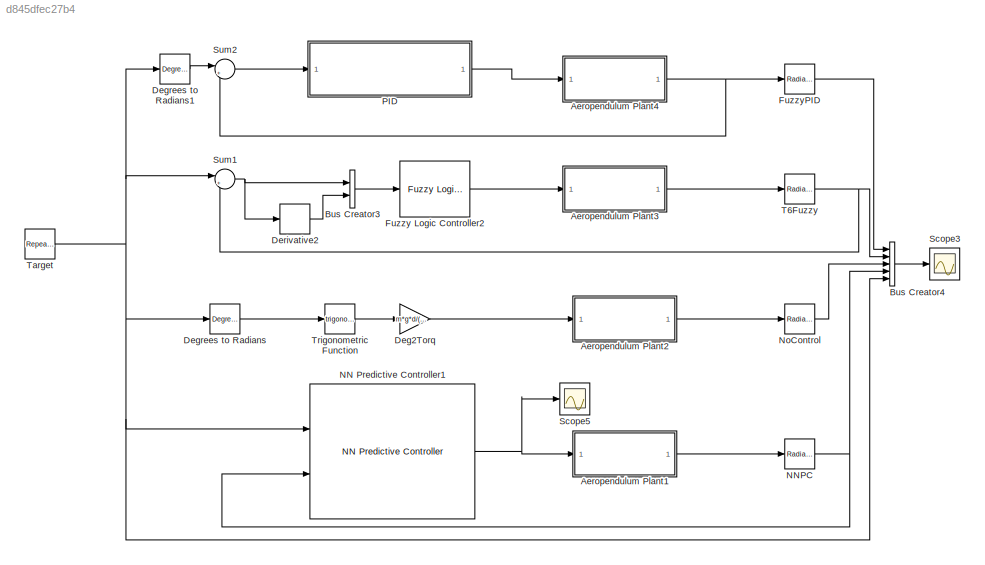
MODEL slx_d845dfec27b4
KIND model
CONFIG AbsTol = auto
CONFIG EnableMultiTasking = off
CONFIG FixedStep = auto
CONFIG MaxStep = auto
CONFIG MinStep = auto
CONFIG RelTol = 1e-3
CONFIG SampleTimeConstraint = Unconstrained
CONFIG Solver = VariableStepAuto
CONFIG SolverName = VariableStepAuto
CONFIG StartTime = 0.0
CONFIG StopTime = 30
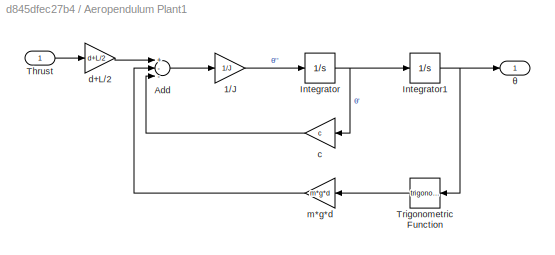
BLOCK [SubSystem] Aeropendulum Plant1
  Ports = [1, 1]
  RequestExecContextInheritance = off
  Variant = off
BLOCK [Gain] Aeropendulum Plant1/1//J
  Gain = 1/J
  OutDataTypeStr = Inherit: Inherit via internal rule
  ParamDataTypeStr = Inherit: Inherit via internal rule
  SaturateOnIntegerOverflow = off
BLOCK [Sum] Aeropendulum Plant1/Add
  InputSameDT = off
  Inputs = +--
  OutDataTypeStr = Inherit: Inherit via internal rule
  Ports = [3, 1]
  SaturateOnIntegerOverflow = off
BLOCK [Integrator] Aeropendulum Plant1/Integrator
  Ports = [1, 1]
BLOCK [Integrator] Aeropendulum Plant1/Integrator1
  Ports = [1, 1]
BLOCK [Inport] Aeropendulum Plant1/Thrust
  IconDisplay = Port number
BLOCK [Trigonometry] Aeropendulum Plant1/Trigonometric Function
  Ports = [1, 1]
BLOCK [Gain] Aeropendulum Plant1/c
  Gain = c
  OutDataTypeStr = Inherit: Inherit via internal rule
  ParamDataTypeStr = Inherit: Inherit via internal rule
  SaturateOnIntegerOverflow = off
BLOCK [Gain] Aeropendulum Plant1/d+L//2
  Gain = d+L/2
  OutDataTypeStr = Inherit: Inherit via internal rule
  ParamDataTypeStr = Inherit: Inherit via internal rule
  SaturateOnIntegerOverflow = off
BLOCK [Gain] Aeropendulum Plant1/m*g*d
  Gain = m*g*d
  OutDataTypeStr = Inherit: Inherit via internal rule
  ParamDataTypeStr = Inherit: Inherit via internal rule
  SaturateOnIntegerOverflow = off
BLOCK [Outport] Aeropendulum Plant1/θ
  IconDisplay = Port number
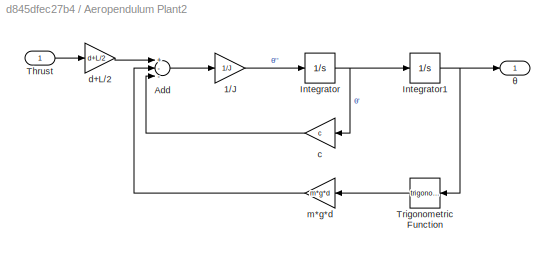
BLOCK [SubSystem] Aeropendulum Plant2
  Ports = [1, 1]
  RequestExecContextInheritance = off
  Variant = off
BLOCK [Gain] Aeropendulum Plant2/1//J
  Gain = 1/J
  OutDataTypeStr = Inherit: Inherit via internal rule
  ParamDataTypeStr = Inherit: Inherit via internal rule
  SaturateOnIntegerOverflow = off
BLOCK [Sum] Aeropendulum Plant2/Add
  InputSameDT = off
  Inputs = +--
  OutDataTypeStr = Inherit: Inherit via internal rule
  Ports = [3, 1]
  SaturateOnIntegerOverflow = off
BLOCK [Integrator] Aeropendulum Plant2/Integrator
  Ports = [1, 1]
BLOCK [Integrator] Aeropendulum Plant2/Integrator1
  Ports = [1, 1]
BLOCK [Inport] Aeropendulum Plant2/Thrust
  IconDisplay = Port number
BLOCK [Trigonometry] Aeropendulum Plant2/Trigonometric Function
  Ports = [1, 1]
BLOCK [Gain] Aeropendulum Plant2/c
  Gain = c
  OutDataTypeStr = Inherit: Inherit via internal rule
  ParamDataTypeStr = Inherit: Inherit via internal rule
  SaturateOnIntegerOverflow = off
BLOCK [Gain] Aeropendulum Plant2/d+L//2
  Gain = d+L/2
  OutDataTypeStr = Inherit: Inherit via internal rule
  ParamDataTypeStr = Inherit: Inherit via internal rule
  SaturateOnIntegerOverflow = off
BLOCK [Gain] Aeropendulum Plant2/m*g*d
  Gain = m*g*d
  OutDataTypeStr = Inherit: Inherit via internal rule
  ParamDataTypeStr = Inherit: Inherit via internal rule
  SaturateOnIntegerOverflow = off
BLOCK [Outport] Aeropendulum Plant2/θ
  IconDisplay = Port number
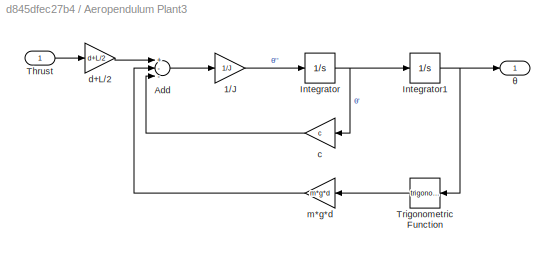
BLOCK [SubSystem] Aeropendulum Plant3
  Ports = [1, 1]
  RequestExecContextInheritance = off
  Variant = off
BLOCK [Gain] Aeropendulum Plant3/1//J
  Gain = 1/J
  OutDataTypeStr = Inherit: Inherit via internal rule
  ParamDataTypeStr = Inherit: Inherit via internal rule
  SaturateOnIntegerOverflow = off
BLOCK [Sum] Aeropendulum Plant3/Add
  InputSameDT = off
  Inputs = +--
  OutDataTypeStr = Inherit: Inherit via internal rule
  Ports = [3, 1]
  SaturateOnIntegerOverflow = off
BLOCK [Integrator] Aeropendulum Plant3/Integrator
  Ports = [1, 1]
BLOCK [Integrator] Aeropendulum Plant3/Integrator1
  Ports = [1, 1]
BLOCK [Inport] Aeropendulum Plant3/Thrust
  IconDisplay = Port number
BLOCK [Trigonometry] Aeropendulum Plant3/Trigonometric Function
  Ports = [1, 1]
BLOCK [Gain] Aeropendulum Plant3/c
  Gain = c
  OutDataTypeStr = Inherit: Inherit via internal rule
  ParamDataTypeStr = Inherit: Inherit via internal rule
  SaturateOnIntegerOverflow = off
BLOCK [Gain] Aeropendulum Plant3/d+L//2
  Gain = d+L/2
  OutDataTypeStr = Inherit: Inherit via internal rule
  ParamDataTypeStr = Inherit: Inherit via internal rule
  SaturateOnIntegerOverflow = off
BLOCK [Gain] Aeropendulum Plant3/m*g*d
  Gain = m*g*d
  OutDataTypeStr = Inherit: Inherit via internal rule
  ParamDataTypeStr = Inherit: Inherit via internal rule
  SaturateOnIntegerOverflow = off
BLOCK [Outport] Aeropendulum Plant3/θ
  IconDisplay = Port number
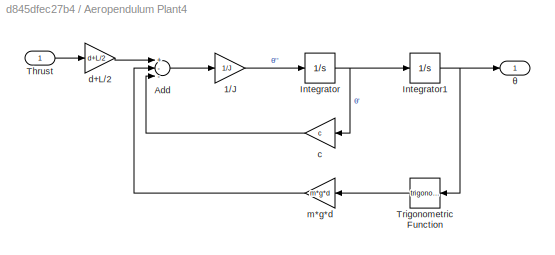
BLOCK [SubSystem] Aeropendulum Plant4
  Ports = [1, 1]
  RequestExecContextInheritance = off
  Variant = off
BLOCK [Gain] Aeropendulum Plant4/1//J
  Gain = 1/J
  OutDataTypeStr = Inherit: Inherit via internal rule
  ParamDataTypeStr = Inherit: Inherit via internal rule
  SaturateOnIntegerOverflow = off
BLOCK [Sum] Aeropendulum Plant4/Add
  InputSameDT = off
  Inputs = +--
  OutDataTypeStr = Inherit: Inherit via internal rule
  Ports = [3, 1]
  SaturateOnIntegerOverflow = off
BLOCK [Integrator] Aeropendulum Plant4/Integrator
  Ports = [1, 1]
BLOCK [Integrator] Aeropendulum Plant4/Integrator1
  Ports = [1, 1]
BLOCK [Inport] Aeropendulum Plant4/Thrust
  IconDisplay = Port number
BLOCK [Trigonometry] Aeropendulum Plant4/Trigonometric Function
  Ports = [1, 1]
BLOCK [Gain] Aeropendulum Plant4/c
  Gain = c
  OutDataTypeStr = Inherit: Inherit via internal rule
  ParamDataTypeStr = Inherit: Inherit via internal rule
  SaturateOnIntegerOverflow = off
BLOCK [Gain] Aeropendulum Plant4/d+L//2
  Gain = d+L/2
  OutDataTypeStr = Inherit: Inherit via internal rule
  ParamDataTypeStr = Inherit: Inherit via internal rule
  SaturateOnIntegerOverflow = off
BLOCK [Gain] Aeropendulum Plant4/m*g*d
  Gain = m*g*d
  OutDataTypeStr = Inherit: Inherit via internal rule
  ParamDataTypeStr = Inherit: Inherit via internal rule
  SaturateOnIntegerOverflow = off
BLOCK [Outport] Aeropendulum Plant4/θ
  IconDisplay = Port number
BLOCK [BusCreator] Bus Creator3
  DisplayOption = bar
  InheritFromInputs = on
  Inputs = 2
  Ports = [2, 1]
BLOCK [BusCreator] Bus Creator4
  DisplayOption = bar
  InheritFromInputs = on
  Inputs = 5
  Ports = [5, 1]
BLOCK [Gain] Deg2Torq
  Gain = m*g*d/(d+L/2)
  OutDataTypeStr = Inherit: Inherit via internal rule
  ParamDataTypeStr = Inherit: Inherit via internal rule
  SaturateOnIntegerOverflow = off
BLOCK [Reference] Degrees to Radians  REF=simulink_extras/Transformations/Degrees to
Radians
  Ports = [1, 1]
  SourceBlock = simulink_extras/Transformations/Degrees to\nRadians
  SourceProductBaseCode = SL
  SourceProductName = Simulink
  SourceType = DegreesToRadians
BLOCK [Reference] Degrees to Radians1  REF=simulink_extras/Transformations/Degrees to
Radians
  Ports = [1, 1]
  SourceBlock = simulink_extras/Transformations/Degrees to\nRadians
  SourceProductBaseCode = SL
  SourceProductName = Simulink
  SourceType = DegreesToRadians
BLOCK [Derivative] Derivative2
BLOCK [Reference] Fuzzy Logic Controller2  REF=fuzblock/Fuzzy Logic   (lib defined in mdl_858b3b3e7478)
Controller
  Ports = [1, 1]
  SourceBlock = fuzblock/Fuzzy Logic \nController
  SourceProductBaseCode = FL
  SourceProductName = Fuzzy Logic Toolbox
  SourceType = Fuzzy Inference System
BLOCK [Reference] FuzzyPID  REF=simulink_extras/Transformations/Radians
to Degrees
  Ports = [1, 1]
  SourceBlock = simulink_extras/Transformations/Radians\nto Degrees
  SourceProductBaseCode = SL
  SourceProductName = Simulink
  SourceType = RadiansToDegrees
BLOCK [Reference] NN Predictive Controller1  REF=neural/Control Systems/NN Predictive Controller
  Ports = [2, 1]
  SourceBlock = neural/Control Systems/NN Predictive Controller
  SourceProductBaseCode = NN
  SourceProductName = Neural Network Toolbox
  SourceType = NN Predictive Controller
BLOCK [Reference] NNPC  REF=simulink_extras/Transformations/Radians
to Degrees
  Ports = [1, 1]
  SourceBlock = simulink_extras/Transformations/Radians\nto Degrees
  SourceProductBaseCode = SL
  SourceProductName = Simulink
  SourceType = RadiansToDegrees
BLOCK [Reference] NoControl  REF=simulink_extras/Transformations/Radians
to Degrees
  Ports = [1, 1]
  SourceBlock = simulink_extras/Transformations/Radians\nto Degrees
  SourceProductBaseCode = SL
  SourceProductName = Simulink
  SourceType = RadiansToDegrees
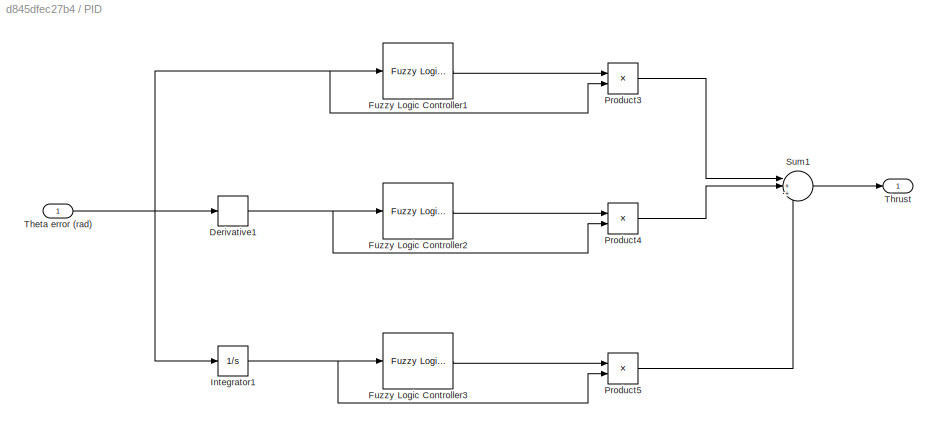
BLOCK [SubSystem] PID
  Ports = [1, 1]
  RequestExecContextInheritance = off
  Variant = off
BLOCK [Derivative] PID/Derivative1
BLOCK [Reference] PID/Fuzzy Logic Controller1  REF=fuzblock/Fuzzy Logic   (lib defined in mdl_858b3b3e7478)
Controller
  Ports = [1, 1]
  SourceBlock = fuzblock/Fuzzy Logic \nController
  SourceProductBaseCode = FL
  SourceProductName = Fuzzy Logic Toolbox
  SourceType = Fuzzy Inference System
BLOCK [Reference] PID/Fuzzy Logic Controller2  REF=fuzblock/Fuzzy Logic   (lib defined in mdl_858b3b3e7478)
Controller
  Ports = [1, 1]
  SourceBlock = fuzblock/Fuzzy Logic \nController
  SourceProductBaseCode = FL
  SourceProductName = Fuzzy Logic Toolbox
  SourceType = Fuzzy Inference System
BLOCK [Reference] PID/Fuzzy Logic Controller3  REF=fuzblock/Fuzzy Logic   (lib defined in mdl_858b3b3e7478)
Controller
  Ports = [1, 1]
  SourceBlock = fuzblock/Fuzzy Logic \nController
  SourceProductBaseCode = FL
  SourceProductName = Fuzzy Logic Toolbox
  SourceType = Fuzzy Inference System
BLOCK [Integrator] PID/Integrator1
  Ports = [1, 1]
BLOCK [Product] PID/Product3
  InputSameDT = off
  OutDataTypeStr = Inherit: Inherit via internal rule
  Ports = [2, 1]
  RndMeth = Floor
  SaturateOnIntegerOverflow = off
BLOCK [Product] PID/Product4
  InputSameDT = off
  OutDataTypeStr = Inherit: Inherit via internal rule
  Ports = [2, 1]
  RndMeth = Floor
  SaturateOnIntegerOverflow = off
BLOCK [Product] PID/Product5
  InputSameDT = off
  OutDataTypeStr = Inherit: Inherit via internal rule
  Ports = [2, 1]
  RndMeth = Floor
  SaturateOnIntegerOverflow = off
BLOCK [Sum] PID/Sum1
  IconShape = round
  InputSameDT = off
  Inputs = |+++
  OutDataTypeStr = Inherit: Inherit via internal rule
  Ports = [3, 1]
  SaturateOnIntegerOverflow = off
BLOCK [Inport] PID/Theta error (rad)
  IconDisplay = Port number
BLOCK [Outport] PID/Thrust
  IconDisplay = Port number
BLOCK [Scope] Scope3
  NumInputPorts = 1
  Ports = [1]
  ScopeSpecificationString = Simulink.scopes.TimeScopeBlockCfg('CurrentConfiguration', extmgr.ConfigurationSet(extmgr.Configuration('Core','General UI',true),extmgr.Configuration('Core','Source UI',true),extmgr.Configuration('Sources','WiredSimulink',true,'DataLoggingVariableName','ScopeData2'),extmgr.Configuration('Visuals','Time Domain',true,'SerializedDisplays',{struct('MinYLimReal','-18.80906','MaxYLimReal','37.45912','YL...<+1455ch>
BLOCK [Scope] Scope5
  NumInputPorts = 1
  Ports = [1]
  ScopeSpecificationString = Simulink.scopes.TimeScopeBlockCfg('CurrentConfiguration', extmgr.ConfigurationSet(extmgr.Configuration('Core','General UI',true),extmgr.Configuration('Core','Source UI',true),extmgr.Configuration('Sources','WiredSimulink',true,'DataLoggingVariableName','ScopeData1'),extmgr.Configuration('Visuals','Time Domain',true,'SerializedDisplays',{struct('MinYLimReal','-0.3075','MaxYLimReal','0.3075','YLabel...<+1452ch>
BLOCK [Sum] Sum1
  IconShape = round
  InputSameDT = off
  Inputs = |+-
  OutDataTypeStr = Inherit: Inherit via internal rule
  Ports = [2, 1]
  SaturateOnIntegerOverflow = off
BLOCK [Sum] Sum2
  IconShape = round
  InputSameDT = off
  Inputs = |+-
  OutDataTypeStr = Inherit: Inherit via internal rule
  Ports = [2, 1]
  SaturateOnIntegerOverflow = off
BLOCK [Reference] T6Fuzzy  REF=simulink_extras/Transformations/Radians
to Degrees
  Ports = [1, 1]
  SourceBlock = simulink_extras/Transformations/Radians\nto Degrees
  SourceProductBaseCode = SL
  SourceProductName = Simulink
  SourceType = RadiansToDegrees
BLOCK [Reference] Target  REF=simulink/Sources/Repeating
Sequence
Stair
  Ports = [0, 1]
  SourceBlock = simulink/Sources/Repeating\nSequence\nStair
  SourceProductBaseCode = SL
  SourceProductName = Simulink
  SourceType = Repeating Sequence Stair
BLOCK [Trigonometry] Trigonometric Function
  Ports = [1, 1]
LINE Aeropendulum Plant1/1//J:1 -> Aeropendulum Plant1/Integrator:1
LINE Aeropendulum Plant1/Add:1 -> Aeropendulum Plant1/1//J:1
NET Aeropendulum Plant1/Integrator1:1 -> Aeropendulum Plant1/Trigonometric Function:1, Aeropendulum Plant1/θ:1
NET Aeropendulum Plant1/Integrator:1 -> Aeropendulum Plant1/Integrator1:1, Aeropendulum Plant1/c:1
LINE Aeropendulum Plant1/Thrust:1 -> Aeropendulum Plant1/d+L//2:1
LINE Aeropendulum Plant1/Trigonometric Function:1 -> Aeropendulum Plant1/m*g*d:1
LINE Aeropendulum Plant1/c:1 -> Aeropendulum Plant1/Add:3
LINE Aeropendulum Plant1/d+L//2:1 -> Aeropendulum Plant1/Add:1
LINE Aeropendulum Plant1/m*g*d:1 -> Aeropendulum Plant1/Add:2
LINE Aeropendulum Plant1:1 -> NNPC:1
LINE Aeropendulum Plant2/1//J:1 -> Aeropendulum Plant2/Integrator:1
LINE Aeropendulum Plant2/Add:1 -> Aeropendulum Plant2/1//J:1
NET Aeropendulum Plant2/Integrator1:1 -> Aeropendulum Plant2/Trigonometric Function:1, Aeropendulum Plant2/θ:1
NET Aeropendulum Plant2/Integrator:1 -> Aeropendulum Plant2/Integrator1:1, Aeropendulum Plant2/c:1
LINE Aeropendulum Plant2/Thrust:1 -> Aeropendulum Plant2/d+L//2:1
LINE Aeropendulum Plant2/Trigonometric Function:1 -> Aeropendulum Plant2/m*g*d:1
LINE Aeropendulum Plant2/c:1 -> Aeropendulum Plant2/Add:3
LINE Aeropendulum Plant2/d+L//2:1 -> Aeropendulum Plant2/Add:1
LINE Aeropendulum Plant2/m*g*d:1 -> Aeropendulum Plant2/Add:2
LINE Aeropendulum Plant2:1 -> NoControl:1
LINE Aeropendulum Plant3/1//J:1 -> Aeropendulum Plant3/Integrator:1
LINE Aeropendulum Plant3/Add:1 -> Aeropendulum Plant3/1//J:1
NET Aeropendulum Plant3/Integrator1:1 -> Aeropendulum Plant3/Trigonometric Function:1, Aeropendulum Plant3/θ:1
NET Aeropendulum Plant3/Integrator:1 -> Aeropendulum Plant3/Integrator1:1, Aeropendulum Plant3/c:1
LINE Aeropendulum Plant3/Thrust:1 -> Aeropendulum Plant3/d+L//2:1
LINE Aeropendulum Plant3/Trigonometric Function:1 -> Aeropendulum Plant3/m*g*d:1
LINE Aeropendulum Plant3/c:1 -> Aeropendulum Plant3/Add:3
LINE Aeropendulum Plant3/d+L//2:1 -> Aeropendulum Plant3/Add:1
LINE Aeropendulum Plant3/m*g*d:1 -> Aeropendulum Plant3/Add:2
LINE Aeropendulum Plant3:1 -> T6Fuzzy:1
LINE Aeropendulum Plant4/1//J:1 -> Aeropendulum Plant4/Integrator:1
LINE Aeropendulum Plant4/Add:1 -> Aeropendulum Plant4/1//J:1
NET Aeropendulum Plant4/Integrator1:1 -> Aeropendulum Plant4/Trigonometric Function:1, Aeropendulum Plant4/θ:1
NET Aeropendulum Plant4/Integrator:1 -> Aeropendulum Plant4/Integrator1:1, Aeropendulum Plant4/c:1
LINE Aeropendulum Plant4/Thrust:1 -> Aeropendulum Plant4/d+L//2:1
LINE Aeropendulum Plant4/Trigonometric Function:1 -> Aeropendulum Plant4/m*g*d:1
LINE Aeropendulum Plant4/c:1 -> Aeropendulum Plant4/Add:3
LINE Aeropendulum Plant4/d+L//2:1 -> Aeropendulum Plant4/Add:1
LINE Aeropendulum Plant4/m*g*d:1 -> Aeropendulum Plant4/Add:2
NET Aeropendulum Plant4:1 -> FuzzyPID:1, Sum2:2
LINE Bus Creator3:1 -> Fuzzy Logic Controller2:1
LINE Bus Creator4:1 -> Scope3:1
LINE Deg2Torq:1 -> Aeropendulum Plant2:1
LINE Degrees to Radians1:1 -> Sum2:1
LINE Degrees to Radians:1 -> Trigonometric Function:1
LINE Derivative2:1 -> Bus Creator3:2
LINE Fuzzy Logic Controller2:1 -> Aeropendulum Plant3:1
LINE FuzzyPID:1 -> Bus Creator4:1
NET NN Predictive Controller1:1 -> Aeropendulum Plant1:1, Scope5:1
NET NNPC:1 -> Bus Creator4:4, NN Predictive Controller1:2
LINE NoControl:1 -> Bus Creator4:3
NET PID/Derivative1:1 -> PID/Fuzzy Logic Controller2:1, PID/Product4:2
LINE PID/Fuzzy Logic Controller1:1 -> PID/Product3:1
LINE PID/Fuzzy Logic Controller2:1 -> PID/Product4:1
LINE PID/Fuzzy Logic Controller3:1 -> PID/Product5:1
NET PID/Integrator1:1 -> PID/Fuzzy Logic Controller3:1, PID/Product5:2
LINE PID/Product3:1 -> PID/Sum1:1
LINE PID/Product4:1 -> PID/Sum1:2
LINE PID/Product5:1 -> PID/Sum1:3
LINE PID/Sum1:1 -> PID/Thrust:1
NET PID/Theta error (rad):1 -> PID/Derivative1:1, PID/Fuzzy Logic Controller1:1, PID/Integrator1:1, PID/Product3:2
LINE PID:1 -> Aeropendulum Plant4:1
NET Sum1:1 -> Bus Creator3:1, Derivative2:1
LINE Sum2:1 -> PID:1
NET T6Fuzzy:1 -> Bus Creator4:2, Sum1:2
NET Target:1 -> Bus Creator4:5, Degrees to Radians1:1, Degrees to Radians:1, NN Predictive Controller1:1, Sum1:1
LINE Trigonometric Function:1 -> Deg2Torq:1
note: NET lines group one-source signal fan-out (src -> all destinations, sorted); 1:1 wires keep LINE
